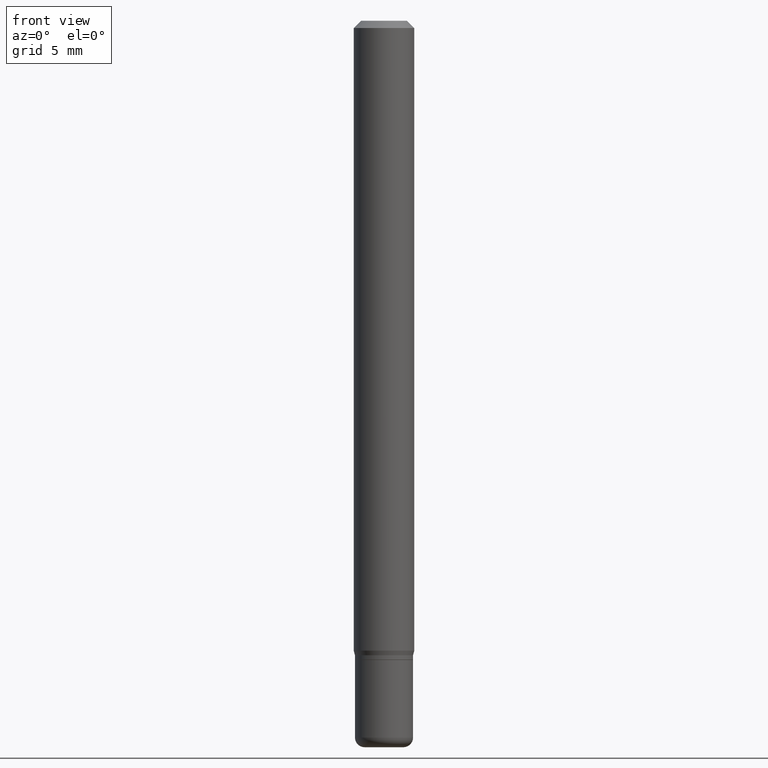
[diagram: clean part render]
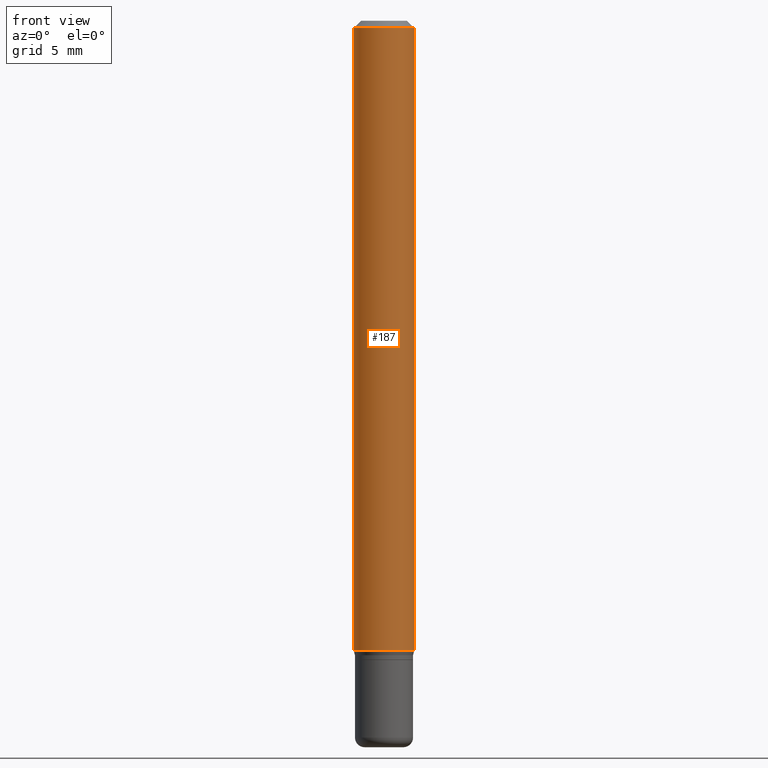
[diagram: same view with one face highlighted and labeled with its STEP entity id]
A machine part, front view. The second image highlights one B-rep face of the part: STEP entity #187.
In plain terms, the highlighted cylindrical surface (edge-blend (fillet) strip) has radius 1.5875 mm, axis along (-0, 0, 1).
Its self-contained STEP definition (entity closure, byte-faithful):
#19 = CARTESIAN_POINT ( 'NONE',  ( 0.06250000000000000000, -4.364351673553916694E-16, 3.047610484872459871E-30 ) ) ;
#20 = EDGE_CURVE ( 'NONE', #412, #359, #214, .T. ) ;
#30 = CARTESIAN_POINT ( 'NONE',  ( 0.000000000000000000, 0.000000000000000000, 0.000000000000000000 ) ) ;
#38 = CARTESIAN_POINT ( 'NONE',  ( -0.06250000000000000000, 4.440892098500626162E-16, -3.074334431409316114E-30 ) ) ;
#43 = DIRECTION ( 'NONE',  ( -2.445468806185136877E-29, 3.491481338843145188E-15, 1.000000000000000000 ) ) ;
#72 = DIRECTION ( 'NONE',  ( 1.000000000000000000, -6.982962677686266711E-15, 4.876176775795935793E-29 ) ) ;
#73 = CARTESIAN_POINT ( 'NONE',  ( 3.180747601520010727E-29, -4.541264589508919020E-15, -1.300669872981078168 ) ) ;
#80 = DIRECTION ( 'NONE',  ( 1.000000000000000000, -6.982962677686262766E-15, 0.000000000000000000 ) ) ;
#82 = LINE ( 'NONE', #38, #355 ) ;
#101 = LINE ( 'NONE', #19, #370 ) ;
#124 = DIRECTION ( 'NONE',  ( -2.445468806185136597E-29, 3.491481338843145583E-15, 1.000000000000000000 ) ) ;
#126 = VERTEX_POINT ( 'NONE', #311 ) ;
#156 = ORIENTED_EDGE ( 'NONE', *, *, #20, .F. ) ;
#176 = DIRECTION ( 'NONE',  ( -2.445468806185136597E-29, 3.491481338843145583E-15, 1.000000000000000000 ) ) ;
#187 = ADVANCED_FACE ( 'NONE', ( #226 ), #395, .T. ) ;
#196 = EDGE_CURVE ( 'NONE', #126, #359, #101, .T. ) ;
#204 = CARTESIAN_POINT ( 'NONE',  ( -0.06250000000000000000, -4.097175379658856404E-15, -1.300669872981078168 ) ) ;
#207 = EDGE_CURVE ( 'NONE', #350, #126, #380, .T. ) ;
#213 = CARTESIAN_POINT ( 'NONE',  ( -0.06250000000000000000, -1.852729194945719842E-15, -0.01499999999999970281 ) ) ;
#214 = CIRCLE ( 'NONE', #334, 0.06250000000000000000 ) ;
#226 = FACE_OUTER_BOUND ( 'NONE', #262, .T. ) ;
#241 = ORIENTED_EDGE ( 'NONE', *, *, #345, .F. ) ;
#252 = CARTESIAN_POINT ( 'NONE',  ( 3.668203209277632395E-31, -5.237222008264614861E-17, -0.01499999999999970281 ) ) ;
#262 = EDGE_LOOP ( 'NONE', ( #241, #303, #518, #156 ) ) ;
#289 = AXIS2_PLACEMENT_3D ( 'NONE', #30, #516, #72 ) ;
#302 = CARTESIAN_POINT ( 'NONE',  ( 0.06250000000000000000, -4.888073874380378612E-16, -0.01499999999999970281 ) ) ;
#303 = ORIENTED_EDGE ( 'NONE', *, *, #207, .T. ) ;
#311 = CARTESIAN_POINT ( 'NONE',  ( 0.06250000000000000000, -4.977699756864310689E-15, -1.300669872981078168 ) ) ;
#334 = AXIS2_PLACEMENT_3D ( 'NONE', #252, #176, #342 ) ;
#342 = DIRECTION ( 'NONE',  ( 1.000000000000000000, -6.982962677686266711E-15, 0.000000000000000000 ) ) ;
#345 = EDGE_CURVE ( 'NONE', #350, #412, #82, .T. ) ;
#350 = VERTEX_POINT ( 'NONE', #204 ) ;
#355 = VECTOR ( 'NONE', #43, 39.37007874015748143 ) ;
#359 = VERTEX_POINT ( 'NONE', #302 ) ;
#370 = VECTOR ( 'NONE', #503, 39.37007874015748143 ) ;
#380 = CIRCLE ( 'NONE', #438, 0.06250000000000000000 ) ;
#395 = CYLINDRICAL_SURFACE ( 'NONE', #289, 0.06250000000000000000 ) ;
#412 = VERTEX_POINT ( 'NONE', #213 ) ;
#438 = AXIS2_PLACEMENT_3D ( 'NONE', #73, #124, #80 ) ;
#503 = DIRECTION ( 'NONE',  ( -2.445468806185136877E-29, 3.491481338843145188E-15, 1.000000000000000000 ) ) ;
#516 = DIRECTION ( 'NONE',  ( -2.445468806185136597E-29, 3.491481338843145583E-15, 1.000000000000000000 ) ) ;
#518 = ORIENTED_EDGE ( 'NONE', *, *, #196, .T. ) ;